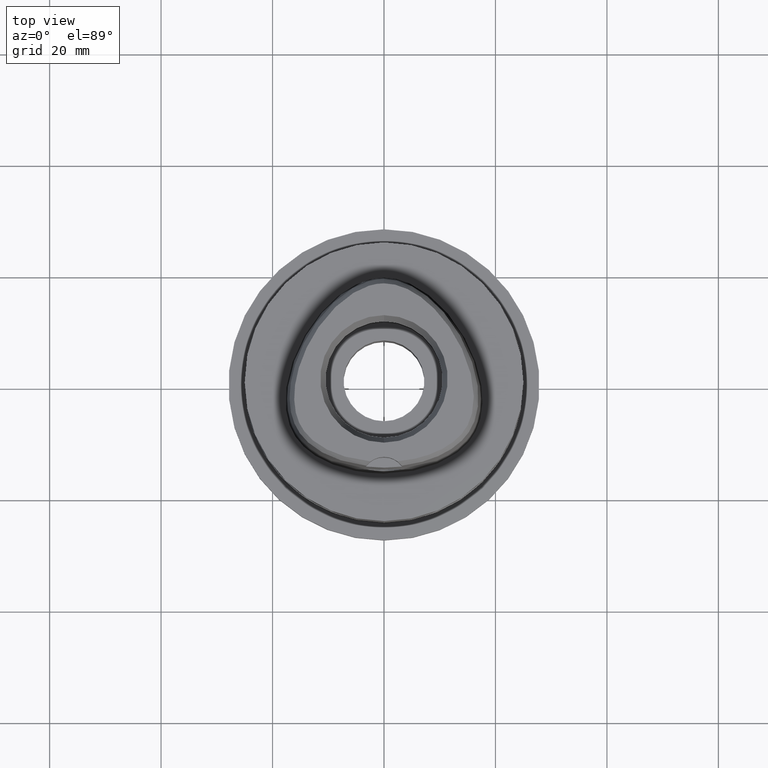
[diagram: clean part render]
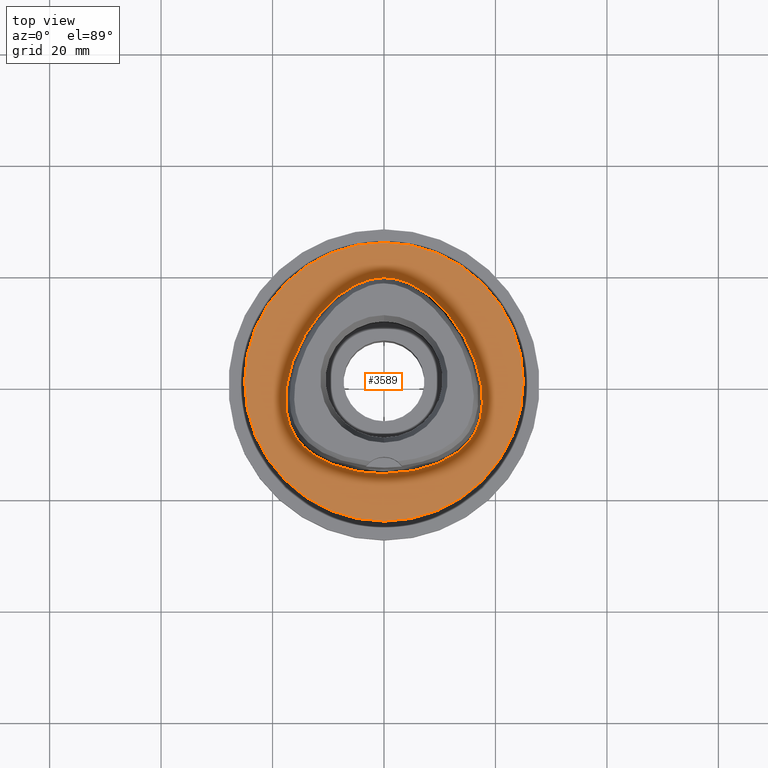
[diagram: same view with one face highlighted and labeled with its STEP entity id]
A machine part, top view. The second image highlights one B-rep face of the part: STEP entity #3589.
In plain terms, the highlighted planar face has unit normal (0, 0, -1).
Its self-contained STEP definition (entity closure, byte-faithful):
#280=CARTESIAN_POINT('',(0.E0,1.270571054115E-14,0.E0));
#281=DIRECTION('',(0.E0,0.E0,-1.E0));
#282=DIRECTION('',(0.E0,-1.E0,0.E0));
#283=AXIS2_PLACEMENT_3D('',#280,#281,#282);
#288=CARTESIAN_POINT('',(0.E0,1.270571054115E-14,0.E0));
#289=DIRECTION('',(0.E0,0.E0,-1.E0));
#290=DIRECTION('',(0.E0,1.E0,0.E0));
#291=AXIS2_PLACEMENT_3D('',#288,#289,#290);
#296=CARTESIAN_POINT('',(-2.281118465563E-11,-1.6455E1,1.845190666927E-13));
#297=CARTESIAN_POINT('',(7.304571827332E-1,-1.6455E1,1.845190666927E-13));
#298=CARTESIAN_POINT('',(2.164518463003E0,-1.639927931015E1,
-8.563559687579E-14));
#299=CARTESIAN_POINT('',(4.255606369370E0,-1.615814153430E1,
2.294598902623E-14));
#300=CARTESIAN_POINT('',(6.225060410989E0,-1.577406760668E1,0.E0));
#301=CARTESIAN_POINT('',(8.026744838706E0,-1.527173983778E1,0.E0));
#302=CARTESIAN_POINT('',(9.636293532678E0,-1.467819537933E1,0.E0));
#303=CARTESIAN_POINT('',(1.105016634173E1,-1.401802374850E1,0.E0));
#304=CARTESIAN_POINT('',(1.228174113290E1,-1.330755070848E1,0.E0));
#305=CARTESIAN_POINT('',(1.333987715640E1,-1.256422169092E1,0.E0));
#306=CARTESIAN_POINT('',(1.424840833587E1,-1.179189874109E1,0.E0));
#307=CARTESIAN_POINT('',(1.501570660967E1,-1.100255009978E1,0.E0));
#308=CARTESIAN_POINT('',(1.566339987022E1,-1.019244978740E1,0.E0));
#309=CARTESIAN_POINT('',(1.620885995761E1,-9.349828751526E0,0.E0));
#310=CARTESIAN_POINT('',(1.666179756675E1,-8.461050953807E0,0.E0));
#311=CARTESIAN_POINT('',(1.703767884501E1,-7.498270964951E0,0.E0));
#312=CARTESIAN_POINT('',(1.733597903079E1,-6.444332590893E0,0.E0));
#313=CARTESIAN_POINT('',(1.755081371292E1,-5.271625132089E0,0.E0));
#314=CARTESIAN_POINT('',(1.766566824048E1,-3.980676385266E0,0.E0));
#315=CARTESIAN_POINT('',(1.766499545457E1,-2.558259302983E0,0.E0));
#316=CARTESIAN_POINT('',(1.752909902616E1,-9.997628796712E-1,0.E0));
#317=CARTESIAN_POINT('',(1.723725035829E1,6.932361496239E-1,0.E0));
#318=CARTESIAN_POINT('',(1.677017095049E1,2.506374361453E0,0.E0));
#319=CARTESIAN_POINT('',(1.611666873453E1,4.405408489582E0,0.E0));
#320=CARTESIAN_POINT('',(1.527494124534E1,6.346144267757E0,0.E0));
#321=CARTESIAN_POINT('',(1.426118997895E1,8.264279063565E0,0.E0));
#322=CARTESIAN_POINT('',(1.310442365594E1,1.009767048688E1,0.E0));
#323=CARTESIAN_POINT('',(1.184302502407E1,1.179257592074E1,0.E0));
#324=CARTESIAN_POINT('',(1.052533916151E1,1.330230539076E1,0.E0));
#325=CARTESIAN_POINT('',(9.189157015758E0,1.460812628969E1,0.E0));
#326=CARTESIAN_POINT('',(7.871301463859E0,1.570137321352E1,0.E0));
#327=CARTESIAN_POINT('',(6.591364532254E0,1.659369795156E1,0.E0));
#328=CARTESIAN_POINT('',(5.362518470069E0,1.730111934243E1,0.E0));
#329=CARTESIAN_POINT('',(4.189316786856E0,1.784360517116E1,0.E0));
#330=CARTESIAN_POINT('',(3.069963109580E0,1.824084207320E1,0.E0));
#331=CARTESIAN_POINT('',(2.001097861902E0,1.850924100961E1,2.278951818249E-14));
#332=CARTESIAN_POINT('',(9.794251318020E-1,1.866244153745E1,
-8.505163973705E-14));
#333=CARTESIAN_POINT('',(3.220868257600E-1,1.869499999998E1,
1.832608139315E-13));
#334=CARTESIAN_POINT('',(8.523788256919E-11,1.869499999998E1,
1.832608139315E-13));
#339=CARTESIAN_POINT('',(8.523788256919E-11,1.869499999998E1,
1.832608139315E-13));
#340=CARTESIAN_POINT('',(-3.204625366595E-1,1.869499999998E1,
1.832608139315E-13));
#341=CARTESIAN_POINT('',(-9.747351316516E-1,1.866277601534E1,
-8.505163973705E-14));
#342=CARTESIAN_POINT('',(-1.992605870062E0,1.851081792946E1,
2.278951818249E-14));
#343=CARTESIAN_POINT('',(-3.057724018241E0,1.824444067098E1,0.E0));
#344=CARTESIAN_POINT('',(-4.175010756420E0,1.784942148216E1,0.E0));
#345=CARTESIAN_POINT('',(-5.348718165696E0,1.730833106011E1,0.E0));
#346=CARTESIAN_POINT('',(-6.579544592178E0,1.660130075729E1,0.E0));
#347=CARTESIAN_POINT('',(-7.862606457114E0,1.570820196922E1,0.E0));
#348=CARTESIAN_POINT('',(-9.185615917113E0,1.461151217792E1,0.E0));
#349=CARTESIAN_POINT('',(-1.052526723611E1,1.330265463633E1,0.E0));
#350=CARTESIAN_POINT('',(-1.184888914625E1,1.178563359707E1,0.E0));
#351=CARTESIAN_POINT('',(-1.311317761551E1,1.008514736733E1,0.E0));
#352=CARTESIAN_POINT('',(-1.427205746677E1,8.245763121103E0,0.E0));
#353=CARTESIAN_POINT('',(-1.528624446161E1,6.322838256994E0,0.E0));
#354=CARTESIAN_POINT('',(-1.612767856535E1,4.377457024181E0,0.E0));
#355=CARTESIAN_POINT('',(-1.678034511338E1,2.472939899223E0,0.E0));
#356=CARTESIAN_POINT('',(-1.724496013440E1,6.576011267525E-1,0.E0));
#357=CARTESIAN_POINT('',(-1.753390820119E1,-1.036352540617E0,0.E0));
#358=CARTESIAN_POINT('',(-1.766660628121E1,-2.594949356340E0,0.E0));
#359=CARTESIAN_POINT('',(-1.766415569526E1,-4.014904841891E0,0.E0));
#360=CARTESIAN_POINT('',(-1.754639192278E1,-5.302897423580E0,0.E0));
#361=CARTESIAN_POINT('',(-1.733051364094E1,-6.467867337514E0,0.E0));
#362=CARTESIAN_POINT('',(-1.702847235865E1,-7.525993908049E0,0.E0));
#363=CARTESIAN_POINT('',(-1.665195549929E1,-8.481981489745E0,0.E0));
#364=CARTESIAN_POINT('',(-1.620554810707E1,-9.353934344429E0,0.E0));
#365=CARTESIAN_POINT('',(-1.567395660274E1,-1.017682569234E1,0.E0));
#366=CARTESIAN_POINT('',(-1.503320241117E1,-1.098267724423E1,0.E0));
#367=CARTESIAN_POINT('',(-1.426900904038E1,-1.177242143237E1,0.E0));
#368=CARTESIAN_POINT('',(-1.336824604608E1,-1.254215889449E1,0.E0));
#369=CARTESIAN_POINT('',(-1.231225164472E1,-1.328812553750E1,0.E0));
#370=CARTESIAN_POINT('',(-1.108392452961E1,-1.400052055056E1,0.E0));
#371=CARTESIAN_POINT('',(-9.668172877995E0,-1.466508849208E1,0.E0));
#372=CARTESIAN_POINT('',(-8.056328480646E0,-1.526232222549E1,0.E0));
#373=CARTESIAN_POINT('',(-6.251815705391E0,-1.576785256795E1,0.E0));
#374=CARTESIAN_POINT('',(-4.276715465928E0,-1.615525604021E1,
2.294598902623E-14));
#375=CARTESIAN_POINT('',(-2.167622974711E0,-1.639938998048E1,
-8.563559687579E-14));
#376=CARTESIAN_POINT('',(-7.309102432286E-1,-1.6455E1,1.845190666927E-13));
#377=CARTESIAN_POINT('',(-2.281118465563E-11,-1.6455E1,1.845190666927E-13));
#2648=VERTEX_POINT('',#339);
#2649=VERTEX_POINT('',#377);
#2654=CARTESIAN_POINT('',(0.E0,-2.5E1,0.E0));
#2655=CARTESIAN_POINT('',(0.E0,2.5E1,0.E0));
#2656=VERTEX_POINT('',#2654);
#2657=VERTEX_POINT('',#2655);
#3573=CARTESIAN_POINT('',(0.E0,1.224646799147E-14,0.E0));
#3574=DIRECTION('',(0.E0,0.E0,-1.E0));
#3575=DIRECTION('',(0.E0,-1.E0,0.E0));
#3576=AXIS2_PLACEMENT_3D('',#3573,#3574,#3575);
#3577=PLANE('',#3576);
#3579=ORIENTED_EDGE('',*,*,#3578,.T.);
#3581=ORIENTED_EDGE('',*,*,#3580,.T.);
#3582=EDGE_LOOP('',(#3579,#3581));
#3583=FACE_OUTER_BOUND('',#3582,.F.);
#3585=ORIENTED_EDGE('',*,*,#3584,.T.);
#3586=ORIENTED_EDGE('',*,*,#3556,.T.);
#3587=EDGE_LOOP('',(#3585,#3586));
#3588=FACE_BOUND('',#3587,.F.);
#284=CIRCLE('',#283,2.5E1);
#292=CIRCLE('',#291,2.5E1);
#335=B_SPLINE_CURVE_WITH_KNOTS('',3,(#296,#297,#298,#299,#300,#301,#302,#303,
#304,#305,#306,#307,#308,#309,#310,#311,#312,#313,#314,#315,#316,#317,#318,#319,
#320,#321,#322,#323,#324,#325,#326,#327,#328,#329,#330,#331,#332,#333,#334),
.UNSPECIFIED.,.F.,.F.,(4,1,1,1,1,1,1,1,1,1,1,1,1,1,1,1,1,1,1,1,1,1,1,1,1,1,1,1,
1,1,1,1,1,1,1,1,4),(0.E0,2.777777777778E-2,5.555555555556E-2,8.333333333333E-2,
1.111111111111E-1,1.388888888889E-1,1.666666666667E-1,1.944444444444E-1,
2.222222222222E-1,2.5E-1,2.777777777778E-1,3.055555555556E-1,3.333333333333E-1,
3.611111111111E-1,3.888888888889E-1,4.166666666667E-1,4.444444444444E-1,
4.722222222222E-1,5.E-1,5.277777777778E-1,5.555555555556E-1,5.833333333333E-1,
6.111111111111E-1,6.388888888889E-1,6.666666666667E-1,6.944444444444E-1,
7.222222222222E-1,7.5E-1,7.777777777778E-1,8.055555555556E-1,8.333333333333E-1,
8.611111111111E-1,8.888888888889E-1,9.166666666667E-1,9.444444444444E-1,
9.722222222222E-1,1.E0),.UNSPECIFIED.);
#378=B_SPLINE_CURVE_WITH_KNOTS('',3,(#339,#340,#341,#342,#343,#344,#345,#346,
#347,#348,#349,#350,#351,#352,#353,#354,#355,#356,#357,#358,#359,#360,#361,#362,
#363,#364,#365,#366,#367,#368,#369,#370,#371,#372,#373,#374,#375,#376,#377),
.UNSPECIFIED.,.F.,.F.,(4,1,1,1,1,1,1,1,1,1,1,1,1,1,1,1,1,1,1,1,1,1,1,1,1,1,1,1,
1,1,1,1,1,1,1,1,4),(0.E0,2.777777777778E-2,5.555555555556E-2,8.333333333333E-2,
1.111111111111E-1,1.388888888889E-1,1.666666666667E-1,1.944444444444E-1,
2.222222222222E-1,2.5E-1,2.777777777778E-1,3.055555555556E-1,3.333333333333E-1,
3.611111111111E-1,3.888888888889E-1,4.166666666667E-1,4.444444444444E-1,
4.722222222222E-1,5.E-1,5.277777777778E-1,5.555555555556E-1,5.833333333333E-1,
6.111111111111E-1,6.388888888889E-1,6.666666666667E-1,6.944444444444E-1,
7.222222222222E-1,7.5E-1,7.777777777778E-1,8.055555555556E-1,8.333333333333E-1,
8.611111111111E-1,8.888888888889E-1,9.166666666667E-1,9.444444444444E-1,
9.722222222222E-1,1.E0),.UNSPECIFIED.);
#3556=EDGE_CURVE('',#2648,#2649,#378,.T.);
#3578=EDGE_CURVE('',#2656,#2657,#284,.T.);
#3580=EDGE_CURVE('',#2657,#2656,#292,.T.);
#3584=EDGE_CURVE('',#2649,#2648,#335,.T.);
#3589=ADVANCED_FACE('',(#3583,#3588),#3577,.F.);